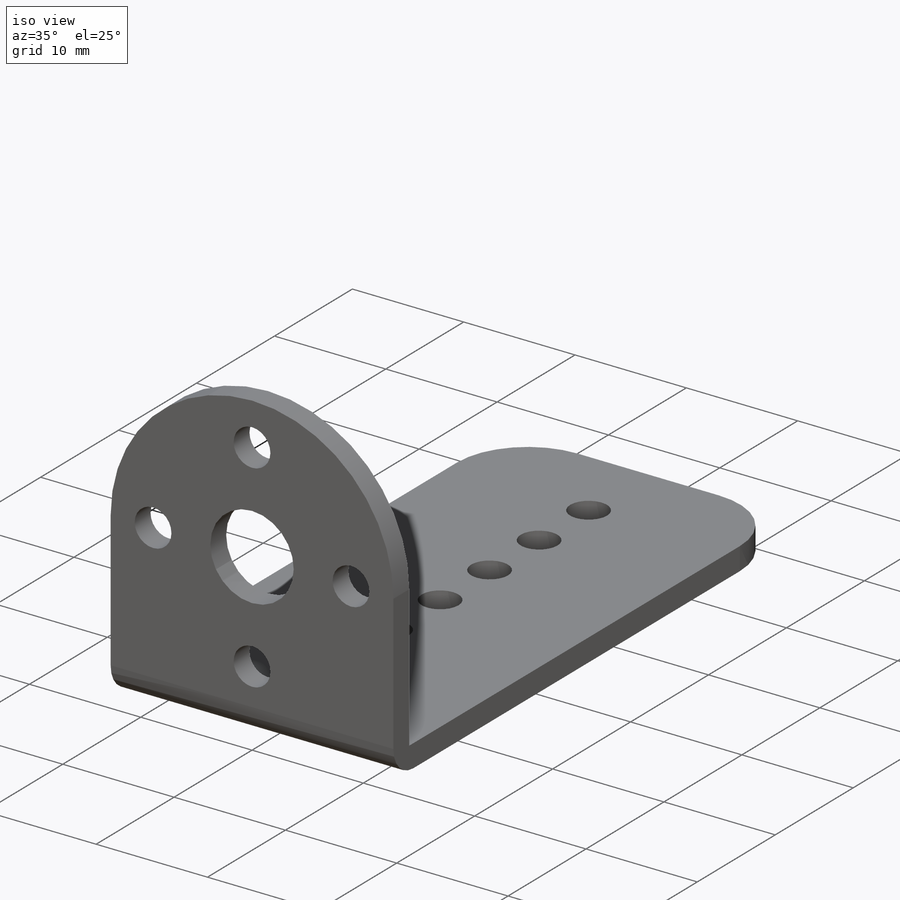
[diagram: iso view]
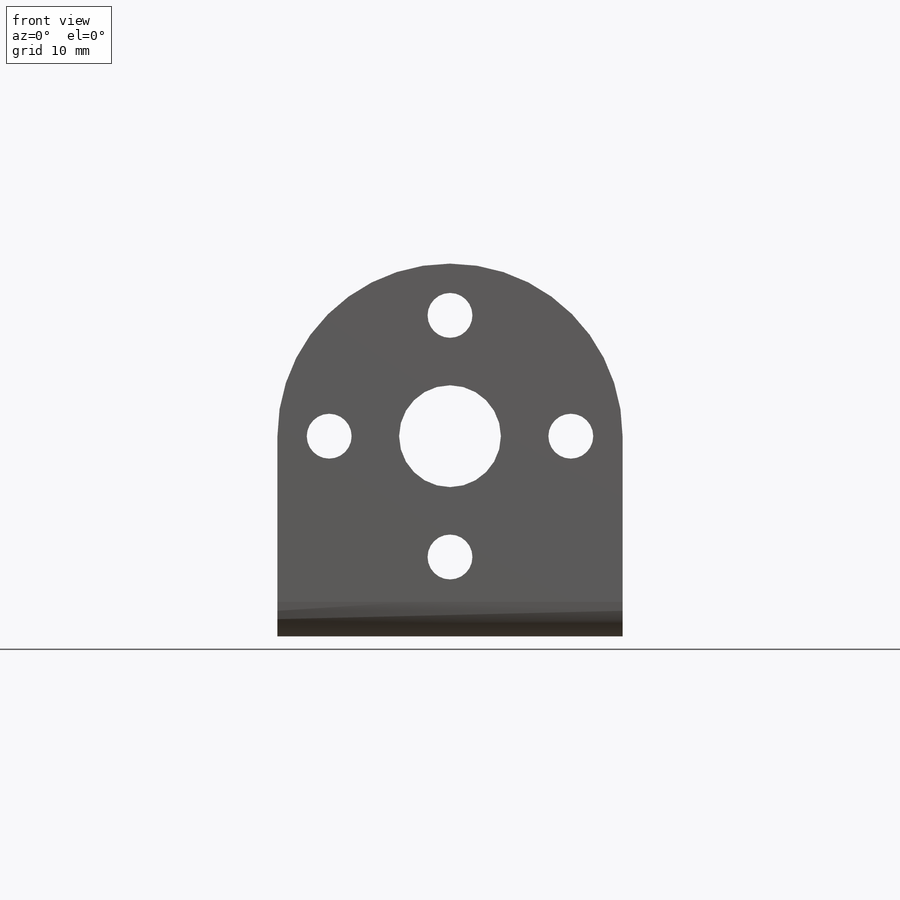
[diagram: front view]
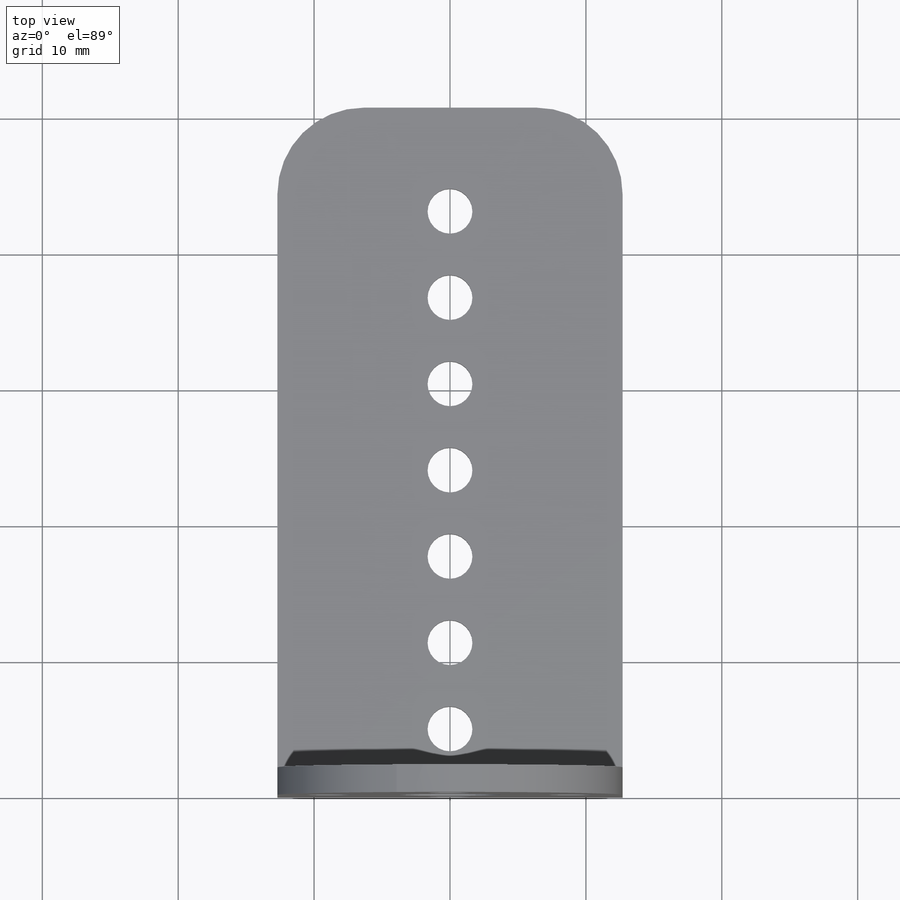
[diagram: top view]
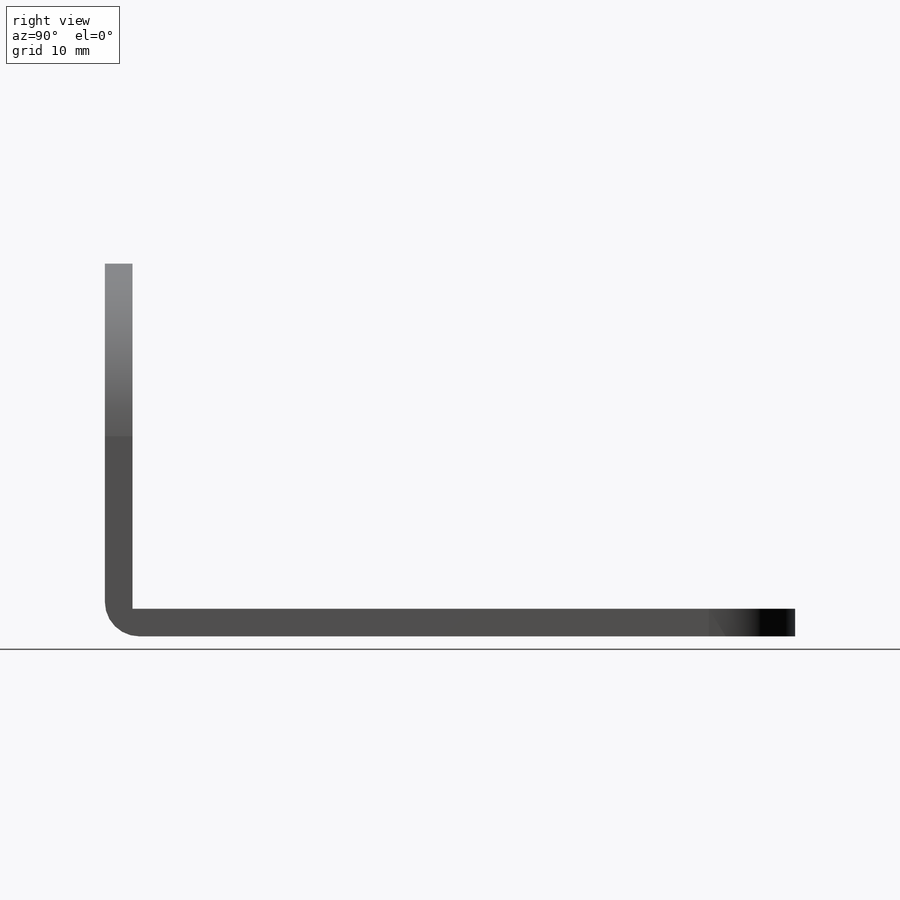
[diagram: right view]
SOLIDWORKS PART (.sldprt)
format: sldprt  version: not decoded by parser v0  size: 196,608 bytes
history: native  units: mm
features: sketch x2, extrude x2, fillet x2, material x1 (+13 scaffold rows collapsed)
feature tree (20):
  scaffold x13  (default folders/planes/origin — collapsed)
  material  "Material <not specified>"
  sketch  "Sketch1"  dims[D1=25.4mm D3=7.493mm D4=3.302mm D2=14.732mm D5=8.89mm D6=4.0]
  extrude  "Boss-Extrude1"  Depth=2.032mm
  sketch  "Sketch2"  dims[D3=3.302mm D6=3.302mm D1=25.4mm D2=50.8mm D4=7.62mm D5=6.35mm D7=6.0]
  extrude  "Boss-Extrude3"  Depth=2.032mm
  fillet  "Fillet3"  Radius=2.54mm
  fillet  "Fillet4"  Radius=6.35mm
decode coverage: 6 of 6 modeling features carry decoded parameters
note: suppression state not decoded; provenance and decode notes live in map.json
